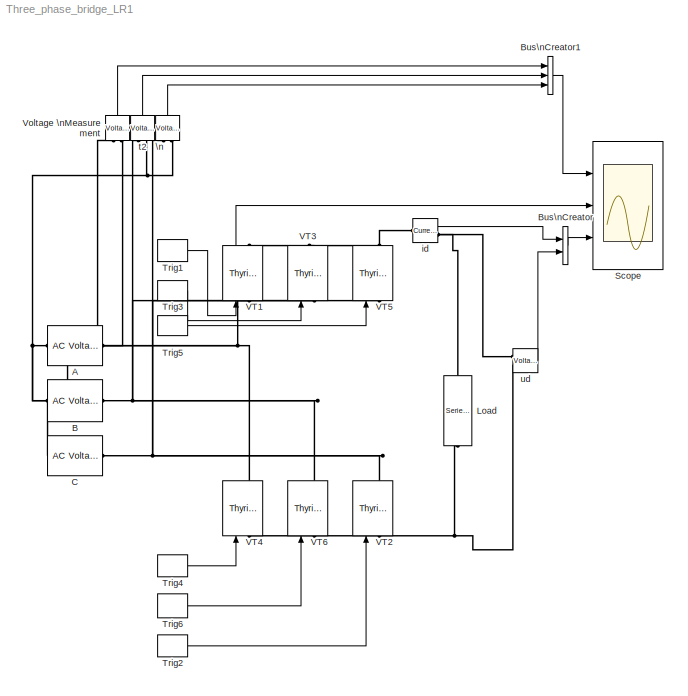
MODEL Three_phase_bridge_LR1
KIND model
BLOCK [Reference]   \n  REF=powerlib/Measurements/Voltage Measurement
  OutputType = Complex
  PSBequivalent = 0
  PhasorSimulation = off
  Ports = [0, 1, 0, 0, 0, 2]
  ShowPortLabels = on
  SourceBlock = powerlib/Measurements/Voltage Measurement
  SourceType = Voltage Measurement
BLOCK [Reference] A  REF=powerlib/Electrical\nSources/AC Voltage Source
  Amplitude = 100
  Frequency = 50
  Measurements = None
  Phase = 30
  Ports = [0, 0, 0, 0, 0, 1, 1]
  SampleTime = 0
  ShowPortLabels = on
  SourceBlock = powerlib/Electrical\nSources/AC Voltage Source
  SourceType = AC Voltage Source
BLOCK [Reference] B  REF=powerlib/Electrical\nSources/AC Voltage Source
  Amplitude = 100
  Frequency = 50
  Measurements = None
  Phase = -90
  Ports = [0, 0, 0, 0, 0, 1, 1]
  SampleTime = 0
  ShowPortLabels = on
  SourceBlock = powerlib/Electrical\nSources/AC Voltage Source
  SourceType = AC Voltage Source
BLOCK [BusCreator] Bus\nCreator
  DialogController = Simulink.DDGSource_Bus
  DisplayOption = bar
  Inputs = 2
  Ports = [2, 1]
BLOCK [BusCreator] Bus\nCreator1
  DialogController = Simulink.DDGSource_Bus
  DisplayOption = bar
  Inputs = 3
  Ports = [3, 1]
BLOCK [Reference] C  REF=powerlib/Electrical\nSources/AC Voltage Source
  Amplitude = 100
  Frequency = 50
  Measurements = None
  Phase = -210
  Ports = [0, 0, 0, 0, 0, 1, 1]
  SampleTime = 0
  ShowPortLabels = on
  SourceBlock = powerlib/Electrical\nSources/AC Voltage Source
  SourceType = AC Voltage Source
BLOCK [Reference] Load  REF=powerlib/Elements/Series RLC Branch
  Capacitance = inf
  Inductance = 0.01
  LConnTagsString = __new0
  LeftPortType = p1
  Measurements = None
  PhysicalDomain = powersysdomain
  Ports = [0, 0, 0, 0, 0, 1, 1]
  RConnTagsString = __new0
  Resistance = 2
  RightPortType = p1
  SourceBlock = powerlib/Elements/Series RLC Branch
  SourceType = Series RLC Branch
  SubClassName = unknown
BLOCK [Scope] Scope
  DataFormat = StructureWithTime
  Decimation = 5
  NumInputPorts = 3
  Ports = [3]
  SampleInput = on
  SampleTime = 1e-4
  TimeRange = 0.05
  YMax = 100~200~200
  YMin = -100~-200~-200
BLOCK [DiscretePulseGenerator] Trig1
  Amplitude = 10
  Period = 0.02
  Ports = [0, 1]
  PulseType = Time based
  PulseWidth = 20
BLOCK [DiscretePulseGenerator] Trig2
  Amplitude = 10
  Period = 0.02
  PhaseDelay = 0.00333
  Ports = [0, 1]
  PulseType = Time based
  PulseWidth = 20
BLOCK [DiscretePulseGenerator] Trig3
  Amplitude = 10
  Period = 0.02
  PhaseDelay = 0.00667
  Ports = [0, 1]
  PulseType = Time based
  PulseWidth = 20
BLOCK [DiscretePulseGenerator] Trig4
  Amplitude = 10
  Period = 0.02
  PhaseDelay = 0.01
  Ports = [0, 1]
  PulseType = Time based
  PulseWidth = 20
BLOCK [DiscretePulseGenerator] Trig5
  Amplitude = 10
  Period = 0.02
  PhaseDelay = 0.01333
  Ports = [0, 1]
  PulseType = Time based
  PulseWidth = 20
BLOCK [DiscretePulseGenerator] Trig6
  Amplitude = 10
  Period = 0.02
  PhaseDelay = 0.01667
  Ports = [0, 1]
  PulseType = Time based
  PulseWidth = 20
BLOCK [Reference] VT1  REF=powerlib/Power\nElectronics/Thyristor
  Cs = 100e-9
  IC = 0
  Lon = 0
  Measurements = on
  Ports = [1, 1, 0, 0, 0, 1, 1]
  Ron = 0.01
  Rs = 1000
  ShowPortLabels = on
  SourceBlock = powerlib/Power\nElectronics/Thyristor
  SourceType = Thyristor
  Vf = 0.8
BLOCK [Reference] VT2  REF=powerlib/Power\nElectronics/Thyristor
  Cs = 100e-9
  IC = 0
  Lon = 0
  Measurements = on
  Ports = [1, 1, 0, 0, 0, 1, 1]
  Ron = 0.01
  Rs = 1000
  ShowPortLabels = on
  SourceBlock = powerlib/Power\nElectronics/Thyristor
  SourceType = Thyristor
  Vf = 0.8
BLOCK [Reference] VT3  REF=powerlib/Power\nElectronics/Thyristor
  Cs = 100e-9
  IC = 0
  Lon = 0
  Measurements = on
  Ports = [1, 1, 0, 0, 0, 1, 1]
  Ron = 0.01
  Rs = 1000
  ShowPortLabels = on
  SourceBlock = powerlib/Power\nElectronics/Thyristor
  SourceType = Thyristor
  Vf = 0.8
BLOCK [Reference] VT4  REF=powerlib/Power\nElectronics/Thyristor
  Cs = 100e-9
  IC = 0
  Lon = 0
  Measurements = on
  Ports = [1, 1, 0, 0, 0, 1, 1]
  Ron = 0.01
  Rs = 1000
  ShowPortLabels = on
  SourceBlock = powerlib/Power\nElectronics/Thyristor
  SourceType = Thyristor
  Vf = 0.8
BLOCK [Reference] VT5  REF=powerlib/Power\nElectronics/Thyristor
  Cs = 100e-9
  IC = 0
  Lon = 0
  Measurements = on
  Ports = [1, 1, 0, 0, 0, 1, 1]
  Ron = 0.01
  Rs = 1000
  ShowPortLabels = on
  SourceBlock = powerlib/Power\nElectronics/Thyristor
  SourceType = Thyristor
  Vf = 0.8
BLOCK [Reference] VT6  REF=powerlib/Power\nElectronics/Thyristor
  Cs = 100e-9
  IC = 0
  Lon = 0
  Measurements = on
  Ports = [1, 1, 0, 0, 0, 1, 1]
  Ron = 0.01
  Rs = 1000
  ShowPortLabels = on
  SourceBlock = powerlib/Power\nElectronics/Thyristor
  SourceType = Thyristor
  Vf = 0.8
BLOCK [Reference] Voltage \nMeasurement  REF=powerlib/Measurements/Voltage Measurement
  OutputType = Complex
  PSBequivalent = 0
  PhasorSimulation = off
  Ports = [0, 1, 0, 0, 0, 2]
  ShowPortLabels = on
  SourceBlock = powerlib/Measurements/Voltage Measurement
  SourceType = Voltage Measurement
BLOCK [Reference] id  REF=powerlib/Measurements/Current Measurement
  OutputType = Complex
  PSBequivalent = 0
  PhasorSimulation = off
  Ports = [0, 1, 0, 0, 0, 1, 1]
  ShowPortLabels = on
  SourceBlock = powerlib/Measurements/Current Measurement
  SourceType = Current Measurement
BLOCK [Reference] t2  REF=powerlib/Measurements/Voltage Measurement
  OutputType = Complex
  PSBequivalent = 0
  PhasorSimulation = off
  Ports = [0, 1, 0, 0, 0, 2]
  ShowPortLabels = on
  SourceBlock = powerlib/Measurements/Voltage Measurement
  SourceType = Voltage Measurement
BLOCK [Reference] ud  REF=powerlib/Measurements/Voltage Measurement
  OutputType = Complex
  PSBequivalent = 0
  PhasorSimulation = off
  Ports = [0, 1, 0, 0, 0, 2]
  ShowPortLabels = on
  SourceBlock = powerlib/Measurements/Voltage Measurement
  SourceType = Voltage Measurement
LINE   \n:1 -> Bus\nCreator1:3
LINE Bus\nCreator1:1 -> Scope:1
LINE Bus\nCreator:1 -> Scope:3
LINE Trig1:1 -> VT1:1
LINE Trig2:1 -> VT2:1
LINE Trig3:1 -> VT3:1
LINE Trig4:1 -> VT4:1
LINE Trig5:1 -> VT5:1
LINE Trig6:1 -> VT6:1
LINE VT1:1 -> Scope:2
LINE Voltage \nMeasurement:1 -> Bus\nCreator1:1
LINE id:1 -> Bus\nCreator:1
LINE t2:1 -> Bus\nCreator1:2
LINE ud:1 -> Bus\nCreator:2
PNET net1:   \n:LConn1 -- C:RConn1 -- VT2:RConn1 -- VT5:LConn1
PNET net2:   \n:LConn2 -- A:LConn1 -- B:LConn1 -- C:LConn1 -- Voltage \nMeasurement:LConn2 -- t2:LConn2
PNET net3: A:RConn1 -- VT1:LConn1 -- VT4:RConn1 -- Voltage \nMeasurement:LConn1
PNET net4: B:RConn1 -- VT3:LConn1 -- VT6:RConn1 -- t2:LConn1
PNET net5: Load:LConn1 -- id:RConn1 -- ud:LConn1
PNET net6: Load:RConn1 -- VT2:LConn1 -- VT4:LConn1 -- VT6:LConn1 -- ud:LConn2
PNET net7: VT1:RConn1 -- VT3:RConn1 -- VT5:RConn1 -- id:LConn1
note: PNET lines group multi-terminal physical nets as a canonical sorted terminal list (undirected conserving connections); 2-terminal nets keep the pairwise PLINE form
